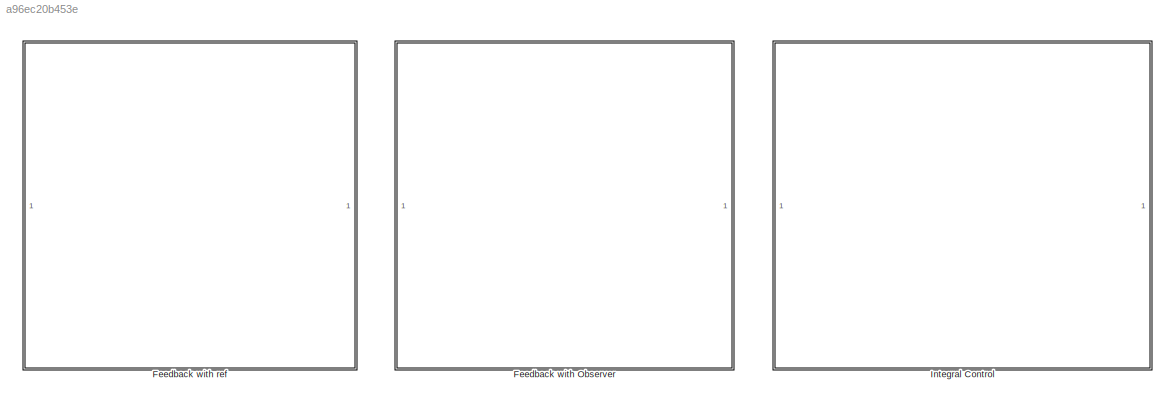
MODEL slx_a96ec20b453e
KIND model
CONFIG AbsTol = auto
CONFIG EnableMultiTasking = off
CONFIG FixedStep = auto
CONFIG MaxStep = auto
CONFIG MinStep = auto
CONFIG RelTol = 1e-3
CONFIG SampleTimeConstraint = Unconstrained
CONFIG SolverName = VariableStepAuto
CONFIG StartTime = 0.0
CONFIG StopTime = 1900.0
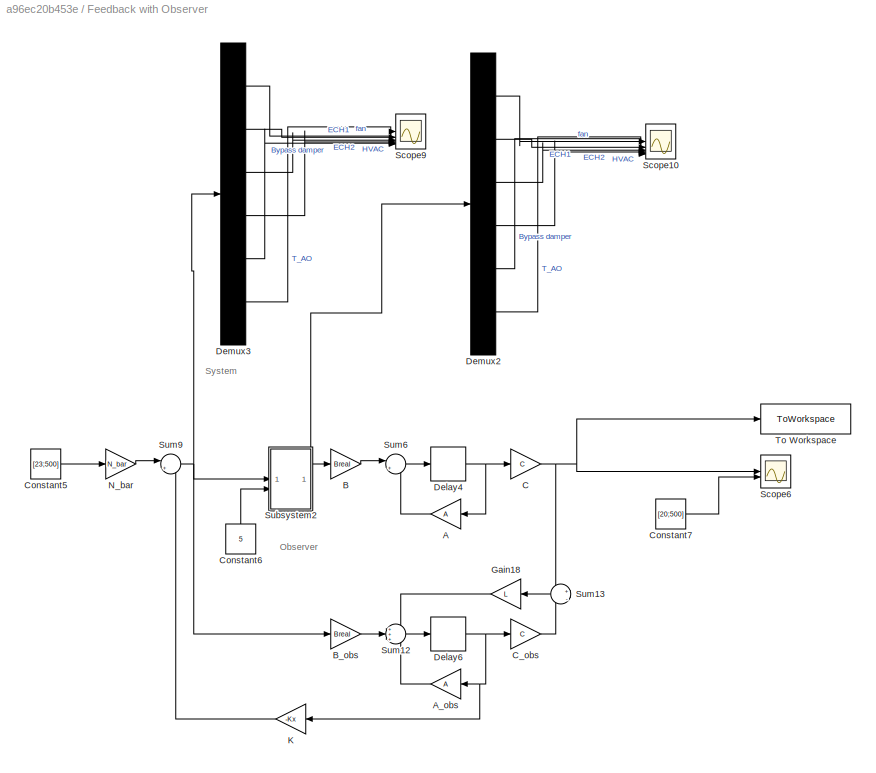
BLOCK [SubSystem] Feedback with Observer
BLOCK [Gain] Feedback with Observer/A
  Gain = A
  Multiplication = Matrix(K*u)
BLOCK [Gain] Feedback with Observer/A_obs
  Gain = A
  Multiplication = Matrix(K*u)
BLOCK [Gain] Feedback with Observer/B
  Gain = Breal
  Multiplication = Matrix(K*u)
BLOCK [Gain] Feedback with Observer/B_obs
  Gain = Breal
  Multiplication = Matrix(K*u)
BLOCK [Gain] Feedback with Observer/C
  Gain = C
  Multiplication = Matrix(K*u)
BLOCK [Gain] Feedback with Observer/C_obs
  Gain = C
  Multiplication = Matrix(K*u)
BLOCK [Constant] Feedback with Observer/Constant5
  Value = [23;500]
BLOCK [Constant] Feedback with Observer/Constant6
  NameLocation = right
  Value = 5
BLOCK [Constant] Feedback with Observer/Constant7
  Value = [20;500]
BLOCK [Delay] Feedback with Observer/Delay4
  DelayLength = 1
  InitialCondition = C^-1*[18;1000]
  InputPortMap = u0
BLOCK [Delay] Feedback with Observer/Delay6
  DelayLength = 1
  InitialCondition = C^-1*[18;1000]
  InputPortMap = u0
BLOCK [Demux] Feedback with Observer/Demux2
  Outputs = 6
BLOCK [Demux] Feedback with Observer/Demux3
  Outputs = 6
BLOCK [Gain] Feedback with Observer/Gain18
  Gain = L
  Multiplication = Matrix(K*u)
  NameLocation = top
BLOCK [Gain] Feedback with Observer/K
  Gain = -Kx
  Multiplication = Matrix(K*u)
BLOCK [Gain] Feedback with Observer/N_bar
  Gain = N_bar
  Multiplication = Matrix(K*u)
BLOCK [Scope] Feedback with Observer/Scope10
  Floating = off
  NumInputPorts = 6
  ScopeSpecificationString = Simulink.scopes.TimeScopeBlockCfg('CurrentConfiguration', extmgr.ConfigurationSet(extmgr.Configuration('Core','General UI',true,'FigureColor',[1 1 1]),extmgr.Configuration('Core','Source UI',true),extmgr.Configuration('Sources','WiredSimulink',true,'DataLoggingVariableName','ScopeData3'),extmgr.Configuration('Visuals','Time Domain',true,'SerializedDisplays',{struct('MinYLimReal','-101.82007','MaxY...<+1808ch>
BLOCK [Scope] Feedback with Observer/Scope6
  Floating = off
  NumInputPorts = 2
  ScopeSpecificationString = Simulink.scopes.TimeScopeBlockCfg('CurrentConfiguration', extmgr.ConfigurationSet(extmgr.Configuration('Core','General UI',true),extmgr.Configuration('Core','Source UI',true),extmgr.Configuration('Sources','WiredSimulink',true,'DataLoggingVariableName','ScopeData4'),extmgr.Configuration('Visuals','Time Domain',true,'SerializedDisplays',{struct('MinYLimReal','-811.35664','MaxYLimReal','7458.34183',...<+1775ch>
BLOCK [Scope] Feedback with Observer/Scope9
  Floating = off
  NumInputPorts = 6
  ScopeSpecificationString = Simulink.scopes.TimeScopeBlockCfg('CurrentConfiguration', extmgr.ConfigurationSet(extmgr.Configuration('Core','General UI',true,'FigureColor',[1 1 1]),extmgr.Configuration('Core','Source UI',true),extmgr.Configuration('Sources','WiredSimulink',true,'DataLoggingVariableName','ScopeData6'),extmgr.Configuration('Visuals','Time Domain',true,'SerializedDisplays',{struct('MinYLimReal','-2002.98364','Max...<+1655ch>
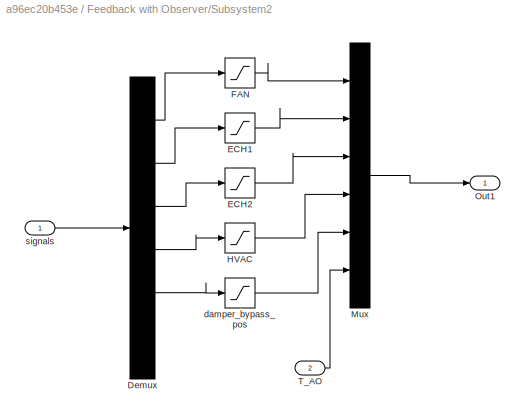
BLOCK [SubSystem] Feedback with Observer/Subsystem2
  PartitionName = Subsystem
  ScheduleAs = Periodic partition
  SystemSampleTime = 15
  TreatAsAtomicUnit = on
BLOCK [Demux] Feedback with Observer/Subsystem2/Demux
  Outputs = 6
BLOCK [Saturate] Feedback with Observer/Subsystem2/ECH1
  LowerLimit = 0
  UpperLimit = 100
BLOCK [Saturate] Feedback with Observer/Subsystem2/ECH2
  LowerLimit = 0
  UpperLimit = 100
BLOCK [Saturate] Feedback with Observer/Subsystem2/FAN
  LowerLimit = 30
  UpperLimit = 100
BLOCK [Saturate] Feedback with Observer/Subsystem2/HVAC
  LowerLimit = -100
  UpperLimit = 100
BLOCK [Mux] Feedback with Observer/Subsystem2/Mux
  DisplayOption = bar
  Inputs = 6
BLOCK [Outport] Feedback with Observer/Subsystem2/Out1
BLOCK [Inport] Feedback with Observer/Subsystem2/T_AO
  Port = 2
BLOCK [Saturate] Feedback with Observer/Subsystem2/damper_bypass_pos
  LowerLimit = 0
  UpperLimit = 100
BLOCK [Inport] Feedback with Observer/Subsystem2/signals
BLOCK [Sum] Feedback with Observer/Sum12
  Inputs = +++
BLOCK [Sum] Feedback with Observer/Sum13
  Inputs = +|-
  NameLocation = top
BLOCK [Sum] Feedback with Observer/Sum6
  Inputs = |++
BLOCK [Sum] Feedback with Observer/Sum9
  Inputs = |+-
BLOCK [ToWorkspace] Feedback with Observer/To Workspace
  FixptAsFi = on
  MaxDataPoints = inf
  SampleTime = -1
  VariableName = simout
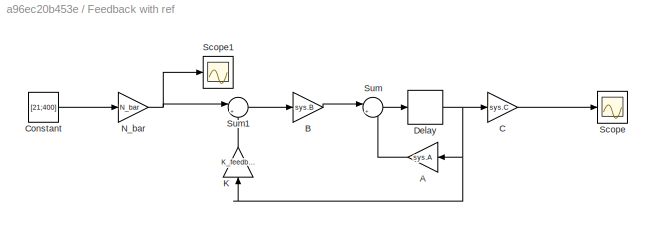
BLOCK [SubSystem] Feedback with ref
BLOCK [Gain] Feedback with ref/A
  Commented = on
  Gain = sys.A
  Multiplication = Matrix(K*u)
BLOCK [Gain] Feedback with ref/B
  Commented = on
  Gain = sys.B
  Multiplication = Matrix(K*u)
BLOCK [Gain] Feedback with ref/C
  Commented = on
  Gain = sys.C
  Multiplication = Matrix(K*u)
BLOCK [Constant] Feedback with ref/Constant
  Commented = on
  Value = [21;400]
BLOCK [Delay] Feedback with ref/Delay
  Commented = on
  DelayLength = 1
  InitialCondition = 0
  InputPortMap = u0
BLOCK [Gain] Feedback with ref/K
  Commented = on
  Gain = K_feedbackOnly
  Multiplication = Matrix(K*u)
  NameLocation = right
BLOCK [Gain] Feedback with ref/N_bar
  Commented = on
  Gain = N_bar
  Multiplication = Matrix(K*u)
BLOCK [Scope] Feedback with ref/Scope
  Commented = on
  Floating = off
  NumInputPorts = 1
  ScopeSpecificationString = Simulink.scopes.TimeScopeBlockCfg('CurrentConfiguration', extmgr.ConfigurationSet(extmgr.Configuration('Core','General UI',true),extmgr.Configuration('Core','Source UI',true),extmgr.Configuration('Sources','WiredSimulink',true),extmgr.Configuration('Visuals','Time Domain',true,'SerializedDisplays',{struct('MinYLimReal','-16.92308','MaxYLimReal','509.08425','YLabelReal','','MinYLimMag','0.00000','M...<+1765ch>
BLOCK [Scope] Feedback with ref/Scope1
  Commented = on
  Floating = off
  NumInputPorts = 1
  ScopeSpecificationString = Simulink.scopes.TimeScopeBlockCfg('CurrentConfiguration', extmgr.ConfigurationSet(extmgr.Configuration('Core','General UI',true),extmgr.Configuration('Core','Source UI',true),extmgr.Configuration('Sources','WiredSimulink',true,'DataLoggingVariableName','ScopeData1'),extmgr.Configuration('Visuals','Time Domain',true,'SerializedDisplays',{struct('MinYLimReal','-1.00000','MaxYLimReal','1.00000','YLab...<+1816ch>
BLOCK [Sum] Feedback with ref/Sum
  Commented = on
  Inputs = |++
BLOCK [Sum] Feedback with ref/Sum1
  Commented = on
  Inputs = |+-
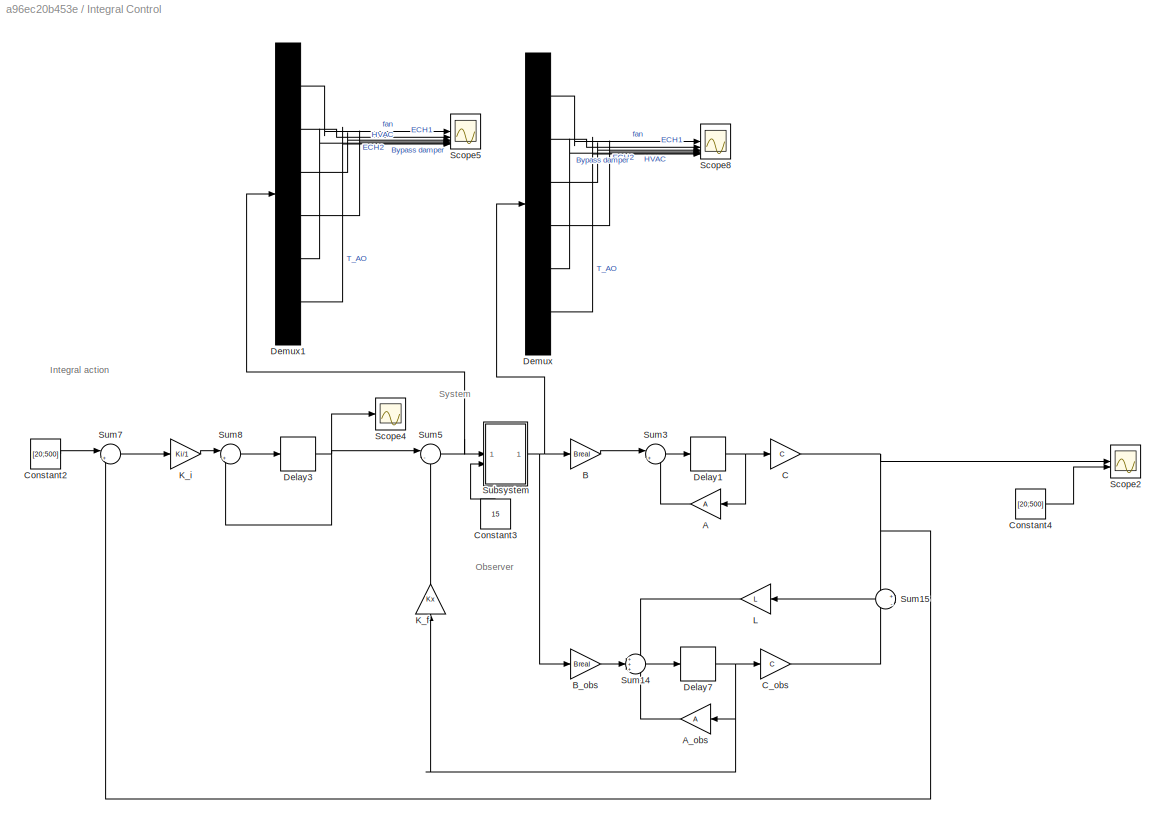
BLOCK [SubSystem] Integral Control
BLOCK [Gain] Integral Control/A
  Gain = A
  Multiplication = Matrix(K*u)
BLOCK [Gain] Integral Control/A_obs
  Gain = A
  Multiplication = Matrix(K*u)
  NameLocation = top
BLOCK [Gain] Integral Control/B
  Gain = Breal
  Multiplication = Matrix(K*u)
BLOCK [Gain] Integral Control/B_obs
  Gain = Breal
  Multiplication = Matrix(K*u)
BLOCK [Gain] Integral Control/C
  Gain = C
  Multiplication = Matrix(K*u)
BLOCK [Gain] Integral Control/C_obs
  Gain = C
  Multiplication = Matrix(K*u)
BLOCK [Constant] Integral Control/Constant2
  Value = [20;500]
BLOCK [Constant] Integral Control/Constant3
  NameLocation = right
  Value = 15
BLOCK [Constant] Integral Control/Constant4
  Value = [20;500]
BLOCK [Delay] Integral Control/Delay1
  DelayLength = 1
  InitialCondition = C^-1*[18;1000]
  InputPortMap = u0
BLOCK [Delay] Integral Control/Delay3
  DelayLength = 1
  InitialCondition = 0
  InputPortMap = u0
BLOCK [Delay] Integral Control/Delay7
  DelayLength = 1
  InitialCondition = C^-1*[18;1000]
  InputPortMap = u0
BLOCK [Demux] Integral Control/Demux
  Outputs = 6
BLOCK [Demux] Integral Control/Demux1
  Outputs = 6
BLOCK [Gain] Integral Control/K_f
  Gain = Kx
  Multiplication = Matrix(K*u)
  NameLocation = right
BLOCK [Gain] Integral Control/K_i
  Gain = Ki/1
  Multiplication = Matrix(K*u)
BLOCK [Gain] Integral Control/L
  Gain = L
  Multiplication = Matrix(K*u)
  NameLocation = top
BLOCK [Scope] Integral Control/Scope2
  Floating = off
  NumInputPorts = 2
  ScopeSpecificationString = Simulink.scopes.TimeScopeBlockCfg('CurrentConfiguration', extmgr.ConfigurationSet(extmgr.Configuration('Core','General UI',true),extmgr.Configuration('Core','Source UI',true),extmgr.Configuration('Sources','WiredSimulink',true,'DataLoggingVariableName','ScopeData2'),extmgr.Configuration('Visuals','Time Domain',true,'SerializedDisplays',{struct('MinYLimReal','-105.4563','MaxYLimReal','1122.82848','...<+1813ch>
BLOCK [Scope] Integral Control/Scope4
  Floating = off
  NumInputPorts = 1
  ScopeSpecificationString = Simulink.scopes.TimeScopeBlockCfg('CurrentConfiguration', extmgr.ConfigurationSet(extmgr.Configuration('Core','General UI',true),extmgr.Configuration('Core','Source UI',true),extmgr.Configuration('Sources','WiredSimulink',true,'DataLoggingVariableName','ScopeData4'),extmgr.Configuration('Visuals','Time Domain',true,'SerializedDisplays',{struct('MinYLimReal','-1401.25423','MaxYLimReal','711.25047',...<+1869ch>
BLOCK [Scope] Integral Control/Scope5
  Floating = off
  NumInputPorts = 6
  ScopeSpecificationString = Simulink.scopes.TimeScopeBlockCfg('CurrentConfiguration', extmgr.ConfigurationSet(extmgr.Configuration('Core','General UI',true,'FigureColor',[1 1 1]),extmgr.Configuration('Core','Source UI',true),extmgr.Configuration('Sources','WiredSimulink',true,'DataLoggingVariableName','ScopeData2'),extmgr.Configuration('Visuals','Time Domain',true,'SerializedDisplays',{struct('MinYLimReal','-194.34425','MaxY...<+1626ch>
BLOCK [Scope] Integral Control/Scope8
  Floating = off
  NumInputPorts = 6
  ScopeSpecificationString = Simulink.scopes.TimeScopeBlockCfg('CurrentConfiguration', extmgr.ConfigurationSet(extmgr.Configuration('Core','General UI',true,'FigureColor',[1 1 1]),extmgr.Configuration('Core','Source UI',true),extmgr.Configuration('Sources','WiredSimulink',true,'DataLoggingVariableName','ScopeData1'),extmgr.Configuration('Visuals','Time Domain',true,'SerializedDisplays',{struct('MinYLimReal','-101.82007','MaxY...<+1569ch>
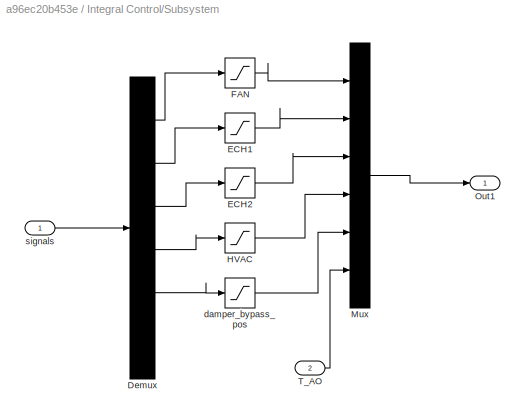
BLOCK [SubSystem] Integral Control/Subsystem
  PartitionName = Subsystem
  ScheduleAs = Periodic partition
  SystemSampleTime = 15
  TreatAsAtomicUnit = on
BLOCK [Demux] Integral Control/Subsystem/Demux
  Outputs = 6
BLOCK [Saturate] Integral Control/Subsystem/ECH1
  LowerLimit = 0
  UpperLimit = 100
BLOCK [Saturate] Integral Control/Subsystem/ECH2
  LowerLimit = 0
  UpperLimit = 100
BLOCK [Saturate] Integral Control/Subsystem/FAN
  LowerLimit = 30
  UpperLimit = 100
BLOCK [Saturate] Integral Control/Subsystem/HVAC
  LowerLimit = -100
  UpperLimit = 100
BLOCK [Mux] Integral Control/Subsystem/Mux
  DisplayOption = bar
  Inputs = 6
BLOCK [Outport] Integral Control/Subsystem/Out1
BLOCK [Inport] Integral Control/Subsystem/T_AO
  Port = 2
BLOCK [Saturate] Integral Control/Subsystem/damper_bypass_pos
  LowerLimit = 0
  UpperLimit = 100
BLOCK [Inport] Integral Control/Subsystem/signals
BLOCK [Sum] Integral Control/Sum14
  Inputs = +++
BLOCK [Sum] Integral Control/Sum15
  Inputs = +|-
  NameLocation = top
BLOCK [Sum] Integral Control/Sum3
  Inputs = |++
BLOCK [Sum] Integral Control/Sum5
  Inputs = |--
BLOCK [Sum] Integral Control/Sum7
  Inputs = |+-
BLOCK [Sum] Integral Control/Sum8
  Inputs = |++
ANNOTATION Feedback with Observer: Observer
ANNOTATION Feedback with Observer: System
ANNOTATION Integral Control: Integral action
ANNOTATION Integral Control: Observer
ANNOTATION Integral Control: System
LINE Feedback with Observer/A:1 -> Feedback with Observer/Sum6:2
LINE Feedback with Observer/A_obs:1 -> Feedback with Observer/Sum12:3
LINE Feedback with Observer/B:1 -> Feedback with Observer/Sum6:1
LINE Feedback with Observer/B_obs:1 -> Feedback with Observer/Sum12:2
NET Feedback with Observer/C:1 -> Feedback with Observer/Scope6:1, Feedback with Observer/Sum13:1, Feedback with Observer/To Workspace:1
LINE Feedback with Observer/C_obs:1 -> Feedback with Observer/Sum13:2
LINE Feedback with Observer/Constant5:1 -> Feedback with Observer/N_bar:1
LINE Feedback with Observer/Constant6:1 -> Feedback with Observer/Subsystem2:2
LINE Feedback with Observer/Constant7:1 -> Feedback with Observer/Scope6:2
NET Feedback with Observer/Delay4:1 -> Feedback with Observer/A:1, Feedback with Observer/C:1
NET Feedback with Observer/Delay6:1 -> Feedback with Observer/A_obs:1, Feedback with Observer/C_obs:1, Feedback with Observer/K:1
LINE Feedback with Observer/Demux2:1 -> Feedback with Observer/Scope10:1
LINE Feedback with Observer/Demux2:2 -> Feedback with Observer/Scope10:2
LINE Feedback with Observer/Demux2:3 -> Feedback with Observer/Scope10:3
LINE Feedback with Observer/Demux2:4 -> Feedback with Observer/Scope10:4
LINE Feedback with Observer/Demux2:5 -> Feedback with Observer/Scope10:5
LINE Feedback with Observer/Demux2:6 -> Feedback with Observer/Scope10:6
LINE Feedback with Observer/Demux3:1 -> Feedback with Observer/Scope9:1
LINE Feedback with Observer/Demux3:2 -> Feedback with Observer/Scope9:2
LINE Feedback with Observer/Demux3:3 -> Feedback with Observer/Scope9:3
LINE Feedback with Observer/Demux3:4 -> Feedback with Observer/Scope9:4
LINE Feedback with Observer/Demux3:5 -> Feedback with Observer/Scope9:5
LINE Feedback with Observer/Demux3:6 -> Feedback with Observer/Scope9:6
LINE Feedback with Observer/Gain18:1 -> Feedback with Observer/Sum12:1
LINE Feedback with Observer/K:1 -> Feedback with Observer/Sum9:2
LINE Feedback with Observer/N_bar:1 -> Feedback with Observer/Sum9:1
LINE Feedback with Observer/Subsystem2/Demux:1 -> Feedback with Observer/Subsystem2/FAN:1
LINE Feedback with Observer/Subsystem2/Demux:2 -> Feedback with Observer/Subsystem2/ECH1:1
LINE Feedback with Observer/Subsystem2/Demux:3 -> Feedback with Observer/Subsystem2/ECH2:1
LINE Feedback with Observer/Subsystem2/Demux:4 -> Feedback with Observer/Subsystem2/HVAC:1
LINE Feedback with Observer/Subsystem2/Demux:5 -> Feedback with Observer/Subsystem2/damper_bypass_pos:1
LINE Feedback with Observer/Subsystem2/ECH1:1 -> Feedback with Observer/Subsystem2/Mux:2
LINE Feedback with Observer/Subsystem2/ECH2:1 -> Feedback with Observer/Subsystem2/Mux:3
LINE Feedback with Observer/Subsystem2/FAN:1 -> Feedback with Observer/Subsystem2/Mux:1
LINE Feedback with Observer/Subsystem2/HVAC:1 -> Feedback with Observer/Subsystem2/Mux:4
LINE Feedback with Observer/Subsystem2/Mux:1 -> Feedback with Observer/Subsystem2/Out1:1
LINE Feedback with Observer/Subsystem2/T_AO:1 -> Feedback with Observer/Subsystem2/Mux:6
LINE Feedback with Observer/Subsystem2/damper_bypass_pos:1 -> Feedback with Observer/Subsystem2/Mux:5
LINE Feedback with Observer/Subsystem2/signals:1 -> Feedback with Observer/Subsystem2/Demux:1
NET Feedback with Observer/Subsystem2:1 -> Feedback with Observer/B:1, Feedback with Observer/Demux2:1
LINE Feedback with Observer/Sum12:1 -> Feedback with Observer/Delay6:1
LINE Feedback with Observer/Sum13:1 -> Feedback with Observer/Gain18:1
LINE Feedback with Observer/Sum6:1 -> Feedback with Observer/Delay4:1
NET Feedback with Observer/Sum9:1 -> Feedback with Observer/B_obs:1, Feedback with Observer/Demux3:1, Feedback with Observer/Subsystem2:1
LINE Feedback with ref/A:1 -> Feedback with ref/Sum:2
LINE Feedback with ref/B:1 -> Feedback with ref/Sum:1
LINE Feedback with ref/C:1 -> Feedback with ref/Scope:1
LINE Feedback with ref/Constant:1 -> Feedback with ref/N_bar:1
NET Feedback with ref/Delay:1 -> Feedback with ref/A:1, Feedback with ref/C:1, Feedback with ref/K:1
LINE Feedback with ref/K:1 -> Feedback with ref/Sum1:2
NET Feedback with ref/N_bar:1 -> Feedback with ref/Scope1:1, Feedback with ref/Sum1:1
LINE Feedback with ref/Sum1:1 -> Feedback with ref/B:1
LINE Feedback with ref/Sum:1 -> Feedback with ref/Delay:1
LINE Integral Control/A:1 -> Integral Control/Sum3:2
LINE Integral Control/A_obs:1 -> Integral Control/Sum14:3
LINE Integral Control/B:1 -> Integral Control/Sum3:1
LINE Integral Control/B_obs:1 -> Integral Control/Sum14:2
NET Integral Control/C:1 -> Integral Control/Scope2:1, Integral Control/Sum15:1, Integral Control/Sum7:2
LINE Integral Control/C_obs:1 -> Integral Control/Sum15:2
LINE Integral Control/Constant2:1 -> Integral Control/Sum7:1
LINE Integral Control/Constant3:1 -> Integral Control/Subsystem:2
LINE Integral Control/Constant4:1 -> Integral Control/Scope2:2
NET Integral Control/Delay1:1 -> Integral Control/A:1, Integral Control/C:1
NET Integral Control/Delay3:1 -> Integral Control/Scope4:1, Integral Control/Sum5:1, Integral Control/Sum8:2
NET Integral Control/Delay7:1 -> Integral Control/A_obs:1, Integral Control/C_obs:1, Integral Control/K_f:1
LINE Integral Control/Demux1:1 -> Integral Control/Scope5:1
LINE Integral Control/Demux1:2 -> Integral Control/Scope5:2
LINE Integral Control/Demux1:3 -> Integral Control/Scope5:3
LINE Integral Control/Demux1:4 -> Integral Control/Scope5:4
LINE Integral Control/Demux1:5 -> Integral Control/Scope5:5
LINE Integral Control/Demux1:6 -> Integral Control/Scope5:6
LINE Integral Control/Demux:1 -> Integral Control/Scope8:1
LINE Integral Control/Demux:2 -> Integral Control/Scope8:2
LINE Integral Control/Demux:3 -> Integral Control/Scope8:3
LINE Integral Control/Demux:4 -> Integral Control/Scope8:4
LINE Integral Control/Demux:5 -> Integral Control/Scope8:5
LINE Integral Control/Demux:6 -> Integral Control/Scope8:6
LINE Integral Control/K_f:1 -> Integral Control/Sum5:2
LINE Integral Control/K_i:1 -> Integral Control/Sum8:1
LINE Integral Control/L:1 -> Integral Control/Sum14:1
LINE Integral Control/Subsystem/Demux:1 -> Integral Control/Subsystem/FAN:1
LINE Integral Control/Subsystem/Demux:2 -> Integral Control/Subsystem/ECH1:1
LINE Integral Control/Subsystem/Demux:3 -> Integral Control/Subsystem/ECH2:1
LINE Integral Control/Subsystem/Demux:4 -> Integral Control/Subsystem/HVAC:1
LINE Integral Control/Subsystem/Demux:5 -> Integral Control/Subsystem/damper_bypass_pos:1
LINE Integral Control/Subsystem/ECH1:1 -> Integral Control/Subsystem/Mux:2
LINE Integral Control/Subsystem/ECH2:1 -> Integral Control/Subsystem/Mux:3
LINE Integral Control/Subsystem/FAN:1 -> Integral Control/Subsystem/Mux:1
LINE Integral Control/Subsystem/HVAC:1 -> Integral Control/Subsystem/Mux:4
LINE Integral Control/Subsystem/Mux:1 -> Integral Control/Subsystem/Out1:1
LINE Integral Control/Subsystem/T_AO:1 -> Integral Control/Subsystem/Mux:6
LINE Integral Control/Subsystem/damper_bypass_pos:1 -> Integral Control/Subsystem/Mux:5
LINE Integral Control/Subsystem/signals:1 -> Integral Control/Subsystem/Demux:1
NET Integral Control/Subsystem:1 -> Integral Control/B:1, Integral Control/B_obs:1, Integral Control/Demux:1
LINE Integral Control/Sum14:1 -> Integral Control/Delay7:1
LINE Integral Control/Sum15:1 -> Integral Control/L:1
LINE Integral Control/Sum3:1 -> Integral Control/Delay1:1
NET Integral Control/Sum5:1 -> Integral Control/Demux1:1, Integral Control/Subsystem:1
LINE Integral Control/Sum7:1 -> Integral Control/K_i:1
LINE Integral Control/Sum8:1 -> Integral Control/Delay3:1
note: NET lines group one-source signal fan-out (src -> all destinations, sorted); 1:1 wires keep LINE
